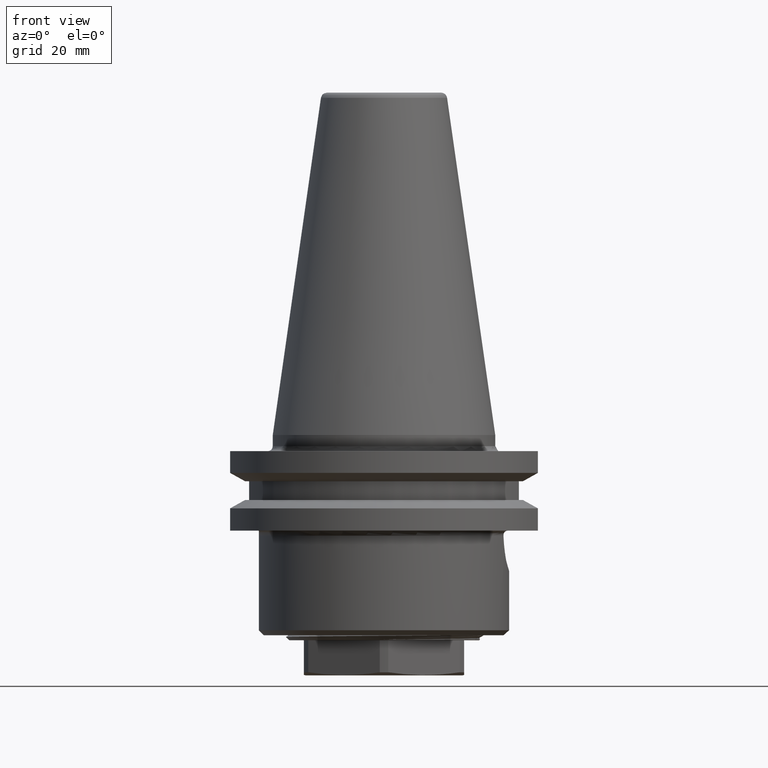
[diagram: clean part render]
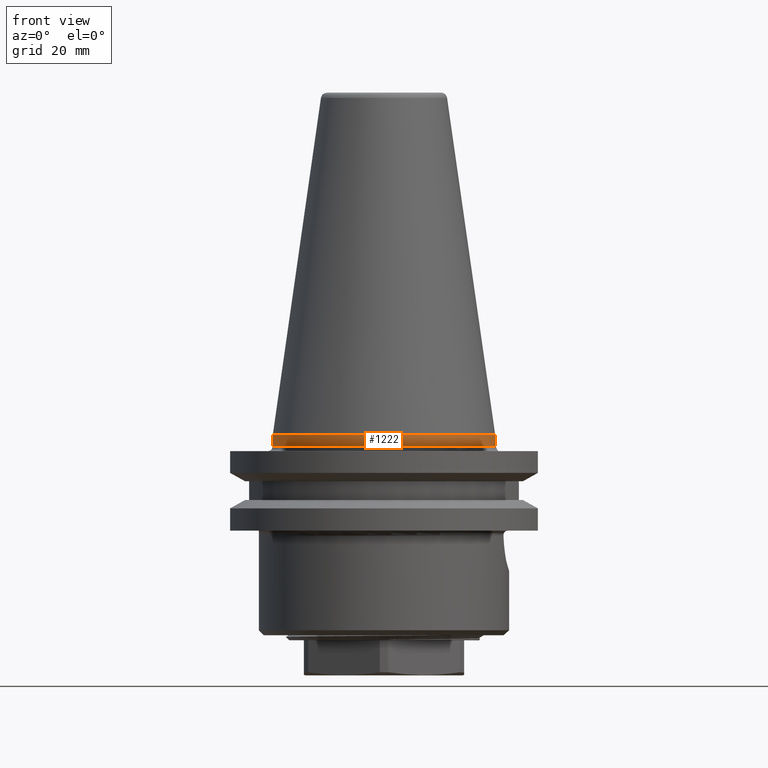
[diagram: same view with one face highlighted and labeled with its STEP entity id]
A machine part, front view. The second image highlights one B-rep face of the part: STEP entity #1222.
In plain terms, the highlighted cylindrical surface (bore or boss wall) has radius 22.225 mm, axis along (0, 0, -1).
Its self-contained STEP definition (entity closure, byte-faithful):
#38=CYLINDRICAL_SURFACE('',#1330,22.225);
#378=ORIENTED_EDGE('',*,*,#688,.T.);
#379=ORIENTED_EDGE('',*,*,#689,.T.);
#688=EDGE_CURVE('',#847,#847,#946,.T.);
#689=EDGE_CURVE('',#848,#848,#947,.T.);
#847=VERTEX_POINT('',#2255);
#848=VERTEX_POINT('',#2257);
#946=CIRCLE('',#1331,22.225);
#947=CIRCLE('',#1332,22.225);
#1011=EDGE_LOOP('',(#378));
#1012=EDGE_LOOP('',(#379));
#1102=FACE_BOUND('',#1011,.T.);
#1103=FACE_BOUND('',#1012,.T.);
#1222=ADVANCED_FACE('',(#1102,#1103),#38,.T.);
#1330=AXIS2_PLACEMENT_3D('',#2253,#1535,#1536);
#1331=AXIS2_PLACEMENT_3D('',#2254,#1537,#1538);
#1332=AXIS2_PLACEMENT_3D('',#2256,#1539,#1540);
#1535=DIRECTION('',(0.,0.,-1.));
#1536=DIRECTION('',(-1.,0.,0.));
#1537=DIRECTION('',(0.,0.,1.));
#1538=DIRECTION('',(1.,0.,0.));
#1539=DIRECTION('',(0.,0.,-1.));
#1540=DIRECTION('',(-1.,0.,0.));
#2253=CARTESIAN_POINT('',(0.,0.,-60.));
#2254=CARTESIAN_POINT('',(0.,0.,-2.2));
#2255=CARTESIAN_POINT('',(22.225,0.,-2.2));
#2256=CARTESIAN_POINT('',(0.,0.,0.));
#2257=CARTESIAN_POINT('',(-22.225,0.,0.));